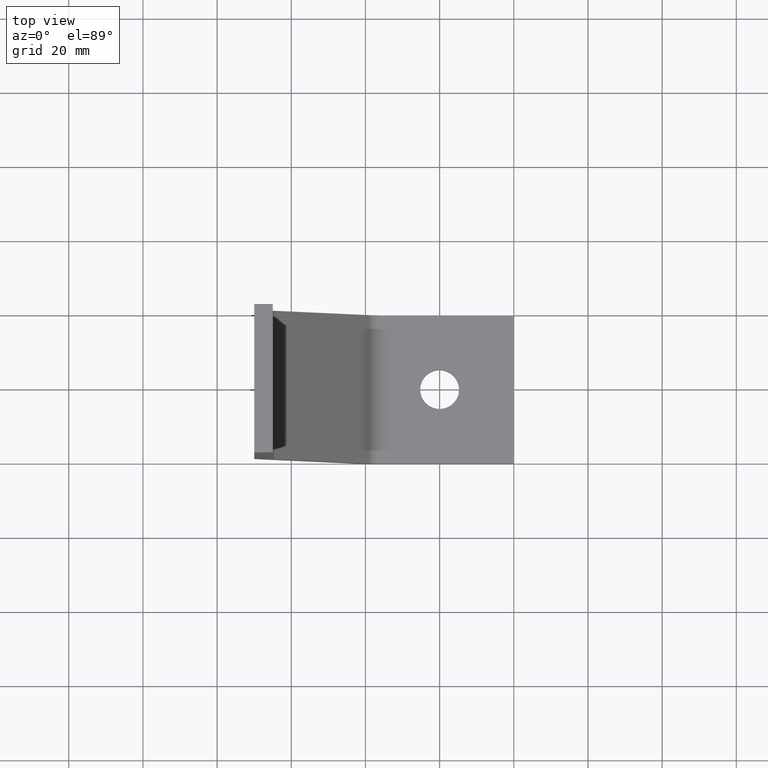
[diagram: clean part render]
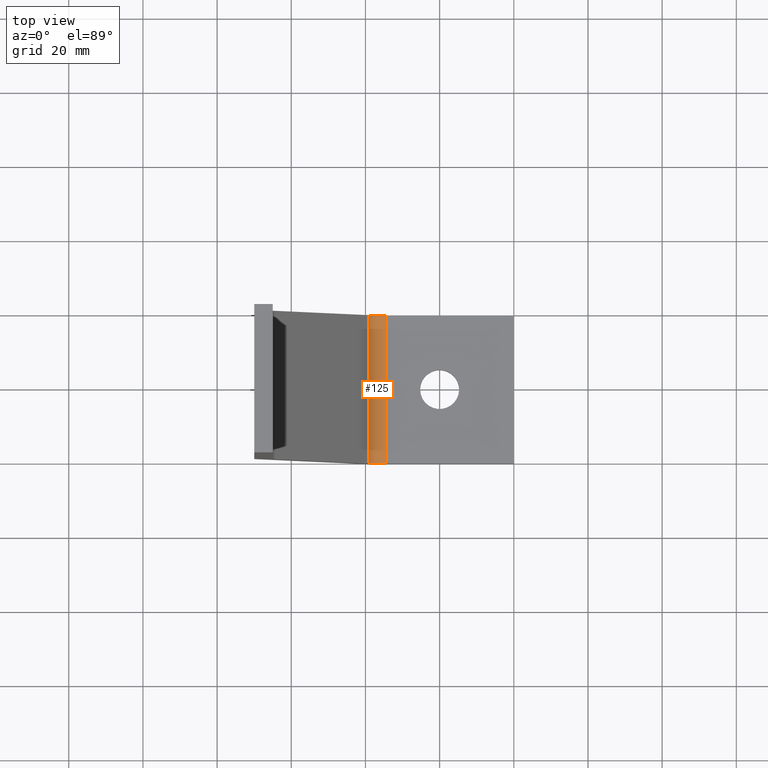
[diagram: same view with one face highlighted and labeled with its STEP entity id]
A machine part, top view. The second image highlights one B-rep face of the part: STEP entity #125.
In plain terms, the highlighted cylindrical surface (edge-blend (fillet) strip) has radius 5 mm, axis along (0, 1, -0).
Its self-contained STEP definition (entity closure, byte-faithful):
#48=CARTESIAN_POINT('',(-14.386500258247835,19.999999999919943,4.999999999980060));
#49=VERTEX_POINT('',#48);
#56=CARTESIAN_POINT('',(-14.386500258247835,-19.999999999919957,4.999999999980061));
#57=VERTEX_POINT('',#56);
#58=CARTESIAN_POINT('',(-14.386500258247835,-19.999999999919957,4.999999999980061));
#59=DIRECTION('',(0.0,1.0,0.0));
#60=VECTOR('',#59,39.999999999839901);
#61=LINE('',#58,#60);
#62=EDGE_CURVE('',#57,#49,#61,.T.);
#93=CARTESIAN_POINT('',(-14.386500258247921,-19.999999999919957,9.999999999960171));
#94=DIRECTION('',(0.0,1.0,-6.123234E-017));
#95=DIRECTION('',(1.709743E-014,-6.123234E-017,-1.0));
#96=AXIS2_PLACEMENT_3D('',#93,#94,#95);
#97=CYLINDRICAL_SURFACE('',#96,4.999999999980108);
#98=ORIENTED_EDGE('',*,*,#62,.T.);
#99=CARTESIAN_POINT('',(-19.059098118035763,19.999999999919943,8.220441279235727));
#100=VERTEX_POINT('',#99);
#101=CARTESIAN_POINT('',(-14.386500258247921,19.999999999919943,9.999999999960165));
#102=DIRECTION('',(0.0,1.0,-6.123234E-017));
#103=DIRECTION('',(-0.934519571961301,-2.179331E-017,-0.355911744146309));
#104=AXIS2_PLACEMENT_3D('',#101,#102,#103);
#105=CIRCLE('',#104,4.999999999980108);
#106=EDGE_CURVE('',#49,#100,#105,.T.);
#107=ORIENTED_EDGE('',*,*,#106,.T.);
#108=CARTESIAN_POINT('',(-19.059098118035763,-19.999999999919957,8.220441279235731));
#109=VERTEX_POINT('',#108);
#110=CARTESIAN_POINT('',(-19.059098118035763,-19.999999999919957,8.220441279235731));
#111=DIRECTION('',(0.0,1.0,0.0));
#112=VECTOR('',#111,39.999999999839901);
#113=LINE('',#110,#112);
#114=EDGE_CURVE('',#109,#100,#113,.T.);
#115=ORIENTED_EDGE('',*,*,#114,.F.);
#116=CARTESIAN_POINT('',(-14.386500258247921,-19.999999999919957,9.999999999960172));
#117=DIRECTION('',(0.0,1.0,-6.123234E-017));
#118=DIRECTION('',(-0.934519571961301,-2.179331E-017,-0.355911744146309));
#119=AXIS2_PLACEMENT_3D('',#116,#117,#118);
#120=CIRCLE('',#119,4.999999999980108);
#121=EDGE_CURVE('',#57,#109,#120,.T.);
#122=ORIENTED_EDGE('',*,*,#121,.F.);
#123=EDGE_LOOP('',(#98,#107,#115,#122));
#124=FACE_OUTER_BOUND('',#123,.T.);
#125=ADVANCED_FACE('',(#124),#97,.F.);